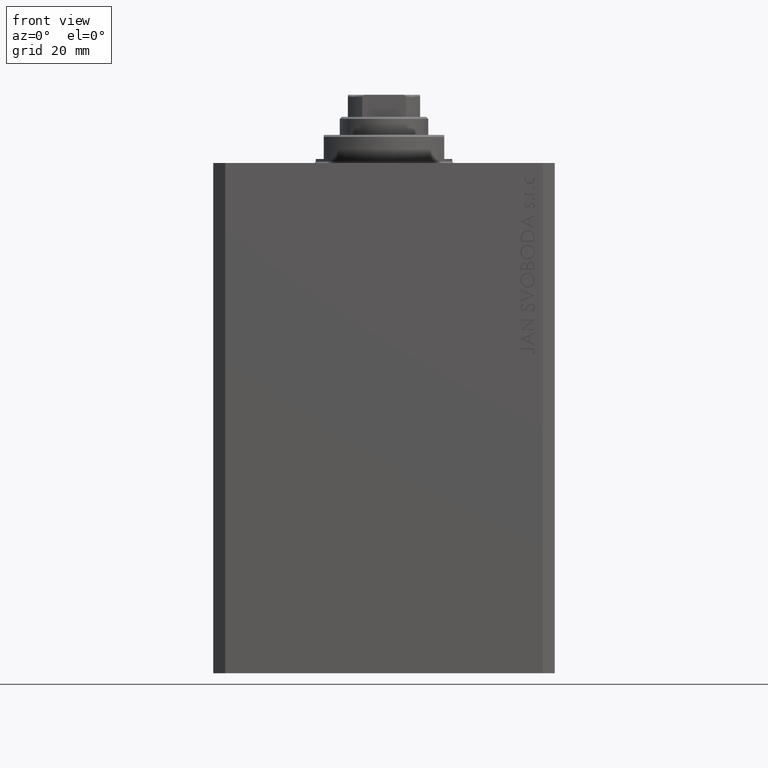
[diagram: clean part render]
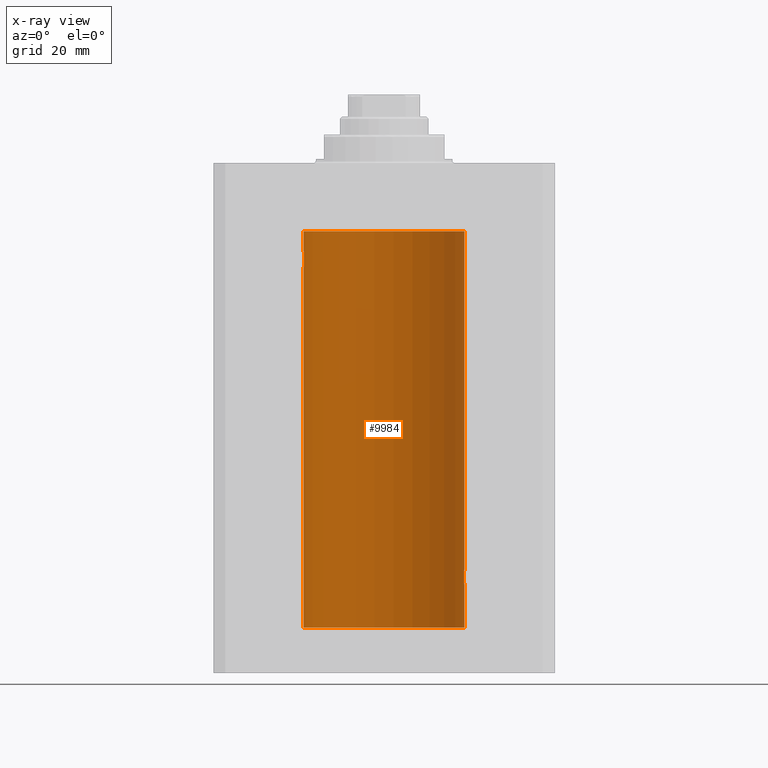
[diagram: x-ray — body ghosted, one internal face saturated and labeled with its STEP entity id]
A machine part, front view, then the same camera in x-ray: the body is ghosted and one INTERNAL B-rep face — a face not visible from any outside direction — is saturated and labeled: STEP entity #9984.
In plain terms, the highlighted cylindrical surface (partial cylindrical patch) has radius 20 mm, axis along (0, 0, 1).
Its self-contained STEP definition (entity closure, byte-faithful):
#103 = FACE_OUTER_BOUND ( 'NONE', #8011, .T. ) ;
#708 = CARTESIAN_POINT ( 'NONE',  ( -19.99365919015135518, 0.5196544277756711683, -25.93573148867292133 ) ) ;
#1800 = CARTESIAN_POINT ( 'NONE',  ( 19.98066923111604964, 0.8874387315505228857, -104.7971214522024042 ) ) ;
#1911 = ORIENTED_EDGE ( 'NONE', *, *, #5653, .F. ) ;
#2103 = LINE ( 'NONE', #45551, #24655 ) ;
#2358 = DIRECTION ( 'NONE',  ( -0.000000000000000000, -0.000000000000000000, 1.000000000000000000 ) ) ;
#2639 = CARTESIAN_POINT ( 'NONE',  ( -19.90522393307484705, 1.947330458682957177, -23.47486091545001941 ) ) ;
#3057 = LINE ( 'NONE', #35526, #11048 ) ;
#3110 = CARTESIAN_POINT ( 'NONE',  ( -19.90610216711450420, 1.935912154109700190, -24.51899474186111050 ) ) ;
#3343 = CARTESIAN_POINT ( 'NONE',  ( -19.89974399317116394, 2.000047251570890250, -24.12981181290706445 ) ) ;
#4376 = VERTEX_POINT ( 'NONE', #33094 ) ;
#4651 = CARTESIAN_POINT ( 'NONE',  ( -20.00000000000000000, 2.449293598294706513E-15, -115.5999999999999943 ) ) ;
#4938 = DIRECTION ( 'NONE',  ( -0.000000000000000000, -0.000000000000000000, 1.000000000000000000 ) ) ;
#4989 = CIRCLE ( 'NONE', #36991, 20.00000000000000000 ) ;
#5491 = ORIENTED_EDGE ( 'NONE', *, *, #19818, .T. ) ;
#5653 = EDGE_CURVE ( 'NONE', #4376, #46522, #16898, .T. ) ;
#5678 = DIRECTION ( 'NONE',  ( -0.000000000000000000, -0.000000000000000000, 1.000000000000000000 ) ) ;
#5926 = CARTESIAN_POINT ( 'NONE',  ( 20.00000000000000000, -1.553109350199128042E-23, -101.0000000000000000 ) ) ;
#5936 = CARTESIAN_POINT ( 'NONE',  ( 20.00000000000000000, -1.553109350199128042E-23, -101.0000000000000000 ) ) ;
#6051 = CARTESIAN_POINT ( 'NONE',  ( 0.000000000000000000, 0.000000000000000000, -115.5999999999999943 ) ) ;
#6095 = CARTESIAN_POINT ( 'NONE',  ( 19.97516523393783316, 1.002309963754524524, -104.7356447155611079 ) ) ;
#6533 = VERTEX_POINT ( 'NONE', #18952 ) ;
#6696 = CARTESIAN_POINT ( 'NONE',  ( -19.93684595445884611, 1.598854313793185655, -22.77049887769366521 ) ) ;
#6926 = CARTESIAN_POINT ( 'NONE',  ( -19.91909332229799290, 1.797847595792767317, -24.88596189455837759 ) ) ;
#7159 = CARTESIAN_POINT ( 'NONE',  ( -19.90106552791689154, 1.987020435121076734, -24.26241417820002155 ) ) ;
#7400 = CARTESIAN_POINT ( 'NONE',  ( -19.98998539619404013, 0.6443418861413118259, -25.89789687358865322 ) ) ;
#7466 = VERTEX_POINT ( 'NONE', #44199 ) ;
#8011 = EDGE_LOOP ( 'NONE', ( #8871, #1911, #26995, #22933, #17355, #9235, #5491, #8435, #36774 ) ) ;
#8114 = CARTESIAN_POINT ( 'NONE',  ( -19.97510079925438475, 1.003547732426807171, -25.73489454601984150 ) ) ;
#8435 = ORIENTED_EDGE ( 'NONE', *, *, #12777, .F. ) ;
#8733 = CARTESIAN_POINT ( 'NONE',  ( 19.89974874213236689, 2.000000000000336620, -103.2611413215582985 ) ) ;
#8871 = ORIENTED_EDGE ( 'NONE', *, *, #17968, .F. ) ;
#8923 = DIRECTION ( 'NONE',  ( 0.000000000000000000, 0.000000000000000000, 1.000000000000000000 ) ) ;
#9087 = CARTESIAN_POINT ( 'NONE',  ( 0.000000000000000000, 0.000000000000000000, -17.00000000000000000 ) ) ;
#9235 = ORIENTED_EDGE ( 'NONE', *, *, #44290, .T. ) ;
#9508 = CARTESIAN_POINT ( 'NONE',  ( 20.00000000000000000, 0.1305404422160218736, -100.9999999999999858 ) ) ;
#9984 = ADVANCED_FACE ( 'NONE', ( #103 ), #43308, .F. ) ;
#10275 = CARTESIAN_POINT ( 'NONE',  ( -19.99370013622814568, 0.5179893069484621249, -22.06384771616670903 ) ) ;
#10774 = EDGE_CURVE ( 'NONE', #42299, #27322, #39462, .T. ) ;
#10975 = CARTESIAN_POINT ( 'NONE',  ( -19.99999999999999645, 0.1305706983324449733, -25.99999999999998934 ) ) ;
#11048 = VECTOR ( 'NONE', #2358, 1000.000000000000000 ) ;
#12777 = EDGE_CURVE ( 'NONE', #6533, #7466, #15982, .T. ) ;
#12864 = DIRECTION ( 'NONE',  ( -0.000000000000000000, -0.000000000000000000, 1.000000000000000000 ) ) ;
#13099 = CARTESIAN_POINT ( 'NONE',  ( 19.98071536551674754, 0.8863972468204365240, -101.2023680539948458 ) ) ;
#13333 = CARTESIAN_POINT ( 'NONE',  ( 19.91911433329477177, 1.797615436563606561, -102.1135710607577920 ) ) ;
#14345 = CARTESIAN_POINT ( 'NONE',  ( -19.94330239452387232, 1.507796451871729504, -25.32060165083834136 ) ) ;
#14734 = CARTESIAN_POINT ( 'NONE',  ( 20.00000000000000000, 1.967327733996653312E-15, -105.0000000000000142 ) ) ;
#14910 = CARTESIAN_POINT ( 'NONE',  ( 0.000000000000000000, 0.000000000000000000, -115.5999999999999943 ) ) ;
#15127 = VERTEX_POINT ( 'NONE', #35651 ) ;
#15288 = CARTESIAN_POINT ( 'NONE',  ( -19.99867931558985745, 0.2631998640366461362, -25.98691292011447374 ) ) ;
#15905 = CARTESIAN_POINT ( 'NONE',  ( 19.98995738555794688, 0.6452086089795042723, -104.8976034536015902 ) ) ;
#15982 = LINE ( 'NONE', #26945, #26228 ) ;
#16250 = DIRECTION ( 'NONE',  ( 1.000000000000000000, 0.000000000000000000, 0.000000000000000000 ) ) ;
#16679 = CARTESIAN_POINT ( 'NONE',  ( 19.99366205580918887, 0.5195372307044503479, -101.0642390655580556 ) ) ;
#16898 = CIRCLE ( 'NONE', #26056, 20.00000000000000000 ) ;
#17355 = ORIENTED_EDGE ( 'NONE', *, *, #29701, .T. ) ;
#17968 = EDGE_CURVE ( 'NONE', #46522, #25136, #3057, .T. ) ;
#18252 = EDGE_CURVE ( 'NONE', #4376, #42299, #37641, .T. ) ;
#18952 = CARTESIAN_POINT ( 'NONE',  ( -20.00000000000000000, -1.269718202421245235E-16, -22.00000000000000000 ) ) ;
#19715 = CARTESIAN_POINT ( 'NONE',  ( 19.95643710845398999, 1.322557776536547047, -104.5059384114668717 ) ) ;
#19818 = EDGE_CURVE ( 'NONE', #15127, #7466, #4989, .T. ) ;
#20728 = CARTESIAN_POINT ( 'NONE',  ( 19.99867993937906618, 0.2631387813862826053, -101.0130809500309681 ) ) ;
#21254 = CARTESIAN_POINT ( 'NONE',  ( -19.92373272380676497, 1.747830109444745927, -22.99354240926169624 ) ) ;
#21488 = CARTESIAN_POINT ( 'NONE',  ( -19.97517568592526160, 1.002099838626314909, -22.26423634872104884 ) ) ;
#21725 = CARTESIAN_POINT ( 'NONE',  ( -19.90978941500366872, 1.898109641280506521, -24.64371130639850804 ) ) ;
#22933 = ORIENTED_EDGE ( 'NONE', *, *, #10774, .T. ) ;
#23249 = CARTESIAN_POINT ( 'NONE',  ( -20.00000000000000000, 2.449293582768784389E-15, -25.99999999999999645 ) ) ;
#23358 = EDGE_CURVE ( 'NONE', #6533, #25136, #40243, .T. ) ;
#24073 = CARTESIAN_POINT ( 'NONE',  ( 19.92473605353366040, 1.734984354167257159, -101.9966090588858947 ) ) ;
#24375 = CARTESIAN_POINT ( 'NONE',  ( -19.99868965376115071, 0.2622407139811102628, -22.01298505384673732 ) ) ;
#24655 = VECTOR ( 'NONE', #5678, 1000.000000000000000 ) ;
#24839 = CARTESIAN_POINT ( 'NONE',  ( -19.96308513509966787, 1.219458756546270672, -22.40940266542446935 ) ) ;
#25136 = VERTEX_POINT ( 'NONE', #23249 ) ;
#25260 = B_SPLINE_CURVE_WITH_KNOTS ( 'NONE', 3,
 ( #27186, #46037, #31711, #34810, #38868, #13333, #24073, #38394, #37929, #27894, #27656, #42210, #13099, #38629, #16679, #20728, #9508, #5926 ),
 .UNSPECIFIED., .F., .F.,
 ( 4, 2, 2, 2, 2, 2, 2, 2, 4 ),
 ( 0.003129134698348759892, 0.003520095305221480463, 0.003911055912094201469, 0.004302016518966922040, 0.004692977125839642612, 0.005083937732712363183, 0.005474898339585083755, 0.005865858946457804327, 0.006256819553330524898 ),
 .UNSPECIFIED. ) ;
#26056 = AXIS2_PLACEMENT_3D ( 'NONE', #6051, #8923, #41856 ) ;
#26228 = VECTOR ( 'NONE', #12864, 1000.000000000000000 ) ;
#26255 = CARTESIAN_POINT ( 'NONE',  ( -20.00000000000000000, 2.449293582768784389E-15, -25.99999999999999645 ) ) ;
#26945 = CARTESIAN_POINT ( 'NONE',  ( -20.00000000000000000, 2.449293598294706513E-15, -115.5999999999999943 ) ) ;
#26995 = ORIENTED_EDGE ( 'NONE', *, *, #18252, .T. ) ;
#27112 = CARTESIAN_POINT ( 'NONE',  ( 19.92371056170336274, 1.748080295468898537, -104.0060386593724928 ) ) ;
#27186 = CARTESIAN_POINT ( 'NONE',  ( 19.89974874213236333, 2.000000000000336620, -103.0000000000000142 ) ) ;
#27322 = VERTEX_POINT ( 'NONE', #43280 ) ;
#27345 = CARTESIAN_POINT ( 'NONE',  ( 19.89974874213236333, 2.000000000000336620, -103.0000000000000142 ) ) ;
#27656 = CARTESIAN_POINT ( 'NONE',  ( 19.96305842179988588, 1.219858681717333138, -101.4097471253956400 ) ) ;
#27894 = CARTESIAN_POINT ( 'NONE',  ( 19.95655800881796083, 1.320814917468111194, -101.4923930935969310 ) ) ;
#29461 = DIRECTION ( 'NONE',  ( 1.000000000000000000, 0.000000000000000000, 0.000000000000000000 ) ) ;
#29701 = EDGE_CURVE ( 'NONE', #27322, #33777, #25260, .T. ) ;
#30455 = CARTESIAN_POINT ( 'NONE',  ( 19.90520750556430229, 1.947496194184494378, -103.5245541699345608 ) ) ;
#30911 = CARTESIAN_POINT ( 'NONE',  ( 20.00000000000000000, 1.967327733996653312E-15, -105.0000000000000142 ) ) ;
#31711 = CARTESIAN_POINT ( 'NONE',  ( 19.90107458412648711, 1.986930174329755161, -102.7369201394179186 ) ) ;
#32472 = CARTESIAN_POINT ( 'NONE',  ( -19.92471474456649716, 1.735228749583835439, -25.00297226784954674 ) ) ;
#33094 = CARTESIAN_POINT ( 'NONE',  ( 20.00000000000000000, 0.000000000000000000, -115.5999999999999943 ) ) ;
#33777 = VERTEX_POINT ( 'NONE', #5936 ) ;
#33880 = CARTESIAN_POINT ( 'NONE',  ( -19.96304379627741454, 1.220099331833899736, -25.59007067689674386 ) ) ;
#34616 = DIRECTION ( 'NONE',  ( 0.000000000000000000, 0.000000000000000000, 1.000000000000000000 ) ) ;
#34735 = CARTESIAN_POINT ( 'NONE',  ( 19.96307037068151757, 1.219701915132744841, -104.5904134935036467 ) ) ;
#34810 = CARTESIAN_POINT ( 'NONE',  ( 19.90611763847108762, 1.935753518394741635, -102.4804224343484833 ) ) ;
#35344 = CARTESIAN_POINT ( 'NONE',  ( -19.98067755938510714, 0.8872481584516758168, -22.20278656943303375 ) ) ;
#35526 = CARTESIAN_POINT ( 'NONE',  ( -20.00000000000000000, 2.449293598294706513E-15, -115.5999999999999943 ) ) ;
#35578 = CARTESIAN_POINT ( 'NONE',  ( -20.00000000000000000, -1.269718202421245235E-16, -22.00000000000000000 ) ) ;
#35651 = CARTESIAN_POINT ( 'NONE',  ( 20.00000000000000000, 0.000000000000000000, -17.00000000000000000 ) ) ;
#36774 = ORIENTED_EDGE ( 'NONE', *, *, #23358, .T. ) ;
#36991 = AXIS2_PLACEMENT_3D ( 'NONE', #9087, #34616, #16250 ) ;
#37641 = LINE ( 'NONE', #38115, #44596 ) ;
#37929 = CARTESIAN_POINT ( 'NONE',  ( 19.94332236886613074, 1.507531922383789524, -101.6790994990407313 ) ) ;
#38115 = CARTESIAN_POINT ( 'NONE',  ( 20.00000000000000000, 0.000000000000000000, -115.5999999999999943 ) ) ;
#38394 = CARTESIAN_POINT ( 'NONE',  ( 19.93681418096177183, 1.590194273034202688, -101.7800630082155209 ) ) ;
#38629 = CARTESIAN_POINT ( 'NONE',  ( 19.98998987637478209, 0.6441982143731844745, -101.1020565463988703 ) ) ;
#38795 = CARTESIAN_POINT ( 'NONE',  ( 19.99868904672146641, 0.2623009746877876802, -104.9870089850981287 ) ) ;
#38868 = CARTESIAN_POINT ( 'NONE',  ( 19.90980722176544049, 1.897923463361389285, -102.3557453536680839 ) ) ;
#38928 = CARTESIAN_POINT ( 'NONE',  ( -19.98996196681220638, 0.6450624715427617506, -22.10234886833925572 ) ) ;
#39395 = CARTESIAN_POINT ( 'NONE',  ( -19.95645382900617903, 1.322305185229311064, -22.49384229619286657 ) ) ;
#39462 = B_SPLINE_CURVE_WITH_KNOTS ( 'NONE', 3,
 ( #14734, #41903, #38795, #42138, #15905, #1800, #6095, #34735, #19715, #45960, #27112, #30455, #8733, #27345 ),
 .UNSPECIFIED., .F., .F.,
 ( 4, 2, 2, 2, 2, 2, 4 ),
 ( 1.911692756536875168E-18, 0.0003911418372936038769, 0.0007822836745872059107, 0.001173425511880807782, 0.001564567349174409870, 0.002346851023761584772, 0.003129134698348759892 ),
 .UNSPECIFIED. ) ;
#40243 = B_SPLINE_CURVE_WITH_KNOTS ( 'NONE', 3,
 ( #35578, #43683, #24375, #10275, #38928, #35344, #21488, #24839, #39395, #6696, #21254, #2639, #43208, #3343, #7159, #3110, #21725, #6926, #32472, #47041, #14345, #43448, #33880, #8114, #41045, #7400, #708, #15288, #10975, #26255 ),
 .UNSPECIFIED., .F., .F.,
 ( 4, 2, 2, 2, 2, 2, 2, 2, 2, 2, 2, 2, 2, 2, 4 ),
 ( 1.233811249882840126E-19, 0.0003910512220831129202, 0.0007821024441662257319, 0.001173153666249338381, 0.001564204888332450813, 0.002346307332498675461, 0.003128409776664900326, 0.003519460998748018179, 0.003910512220831135165, 0.004301563442914253452, 0.004692614664997370871, 0.005083665887080488291, 0.005474717109163606578, 0.005865768331246723997, 0.006256819553329842284 ),
 .UNSPECIFIED. ) ;
#41045 = CARTESIAN_POINT ( 'NONE',  ( -19.98070694681040038, 0.8865903856744316025, -25.79753901127162763 ) ) ;
#41856 = DIRECTION ( 'NONE',  ( 1.000000000000000000, 0.000000000000000000, 0.000000000000000000 ) ) ;
#41903 = CARTESIAN_POINT ( 'NONE',  ( 20.00000000000000000, 0.1322642052205942886, -105.0000000000000426 ) ) ;
#42138 = CARTESIAN_POINT ( 'NONE',  ( 19.99369727434158506, 0.5181068333511539281, -104.9361228828299630 ) ) ;
#42210 = CARTESIAN_POINT ( 'NONE',  ( 19.97511131722831479, 1.003336743019912936, -101.2649856517438849 ) ) ;
#42299 = VERTEX_POINT ( 'NONE', #30911 ) ;
#43208 = CARTESIAN_POINT ( 'NONE',  ( -19.89975827978156175, 1.999905101582726719, -23.73819846102561115 ) ) ;
#43280 = CARTESIAN_POINT ( 'NONE',  ( 19.89974874213236333, 2.000000000000336620, -103.0000000000000142 ) ) ;
#43308 = CYLINDRICAL_SURFACE ( 'NONE', #47119, 20.00000000000000000 ) ;
#43448 = CARTESIAN_POINT ( 'NONE',  ( -19.95654117037011588, 1.321069663197671273, -25.50738641543989615 ) ) ;
#43683 = CARTESIAN_POINT ( 'NONE',  ( -19.99999999999999645, 0.1322335637814733289, -21.99999999999999645 ) ) ;
#44199 = CARTESIAN_POINT ( 'NONE',  ( -20.00000000000000000, 2.449293598294706513E-15, -17.00000000000000000 ) ) ;
#44290 = EDGE_CURVE ( 'NONE', #33777, #15127, #2103, .T. ) ;
#44596 = VECTOR ( 'NONE', #4938, 1000.000000000000000 ) ;
#45551 = CARTESIAN_POINT ( 'NONE',  ( 20.00000000000000000, 0.000000000000000000, -115.5999999999999943 ) ) ;
#45960 = CARTESIAN_POINT ( 'NONE',  ( 19.93682487288204541, 1.599118048130817149, -104.2291703518122006 ) ) ;
#46037 = CARTESIAN_POINT ( 'NONE',  ( 19.89974874213236689, 2.000000000000336620, -102.8694898374175750 ) ) ;
#46522 = VERTEX_POINT ( 'NONE', #4651 ) ;
#46667 = DIRECTION ( 'NONE',  ( -0.000000000000000000, -0.000000000000000000, 1.000000000000000000 ) ) ;
#47041 = CARTESIAN_POINT ( 'NONE',  ( -19.93679350243183990, 1.590453176650918676, -25.21960275349743696 ) ) ;
#47119 = AXIS2_PLACEMENT_3D ( 'NONE', #14910, #46667, #29461 ) ;